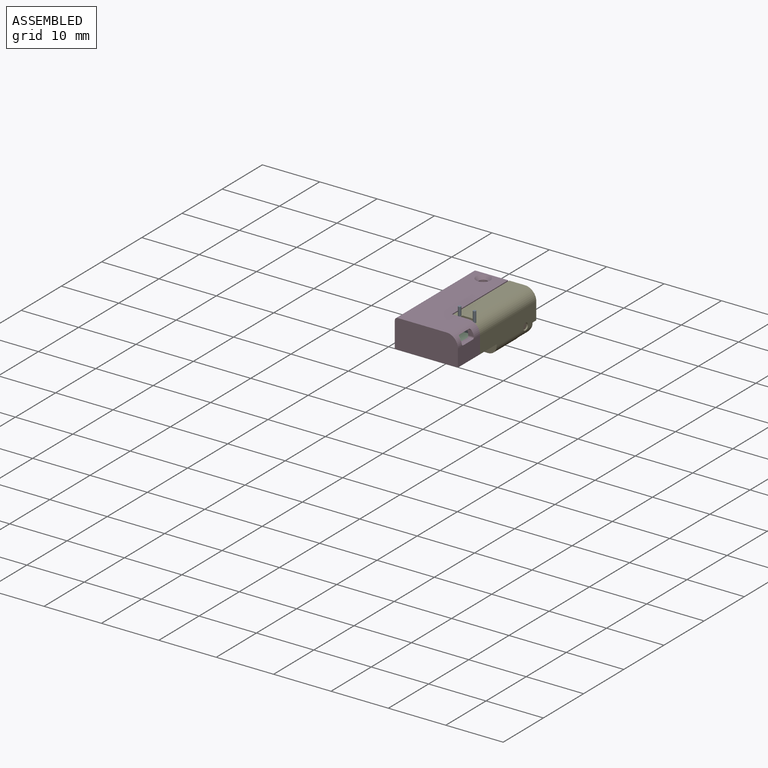
[diagram: assembled view]
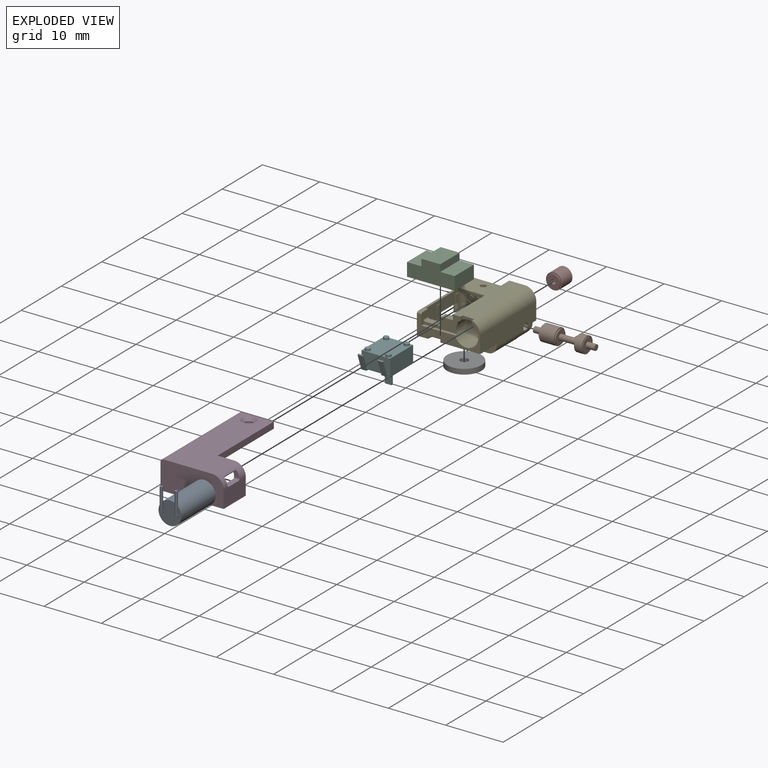
[diagram: exploded view]
GUIDED TOUR — MATED ASSEMBLY (Onshape document 894d8f479f96f955b0e7b1ad, AutoMate assembly 894d8f479f96f955b0e7b1ad_890bfd5f9ae46e16dcd58cb7_c9d778f2d391969207fd51cb_default)

This assembly has 8 components, labeled P0..P7 below (a component is one placed occurrence of a part; the same part can appear more than once), held together by 13 mates. A mate is a constraint between two components; its type names the relative motion it leaves free:
  FASTENED — locks the two components together rigidly (no relative motion),
  PLANAR — leaves sliding in the plane through the listed point (normal = the listed direction) and rotation about that normal free,
  SLIDER — leaves translation along the listed axis free.
Axis/direction vectors are unit vectors and 'through' points are millimeter coordinates, both in the assembly's world frame.

MATES
  1. PLANAR "Planar 3": P4 <-> P5, direction (0.000, -1.000, 0.000) through (3.16, 2.73, 0.66) mm
  2. PLANAR "Planar 6": P1 <-> P4, direction (1.000, 0.000, 0.000) through (9.30, 4.13, -1.98) mm
  3. PLANAR "Planar 2": P5 <-> P4, direction (1.000, 0.000, 0.000) through (5.60, -0.22, 0.09) mm
  4. PLANAR "Planar 13": P5 <-> P6, direction (0.000, 0.000, -1.000) through (3.10, 0.13, -1.51) mm
  5. PLANAR "Planar 1": P4 <-> P5, direction (0.000, 0.000, 1.000) through (2.95, -4.23, -1.28) mm
  6. SLIDER "Slider 1": P4 <-> P1, axis (-1.000, 0.000, 0.000) through (0.00, 4.13, -1.98) mm
  7. PLANAR "Planar 5": P0 <-> P7, direction (0.000, 1.000, 0.000) through (8.60, 2.71, 0.52) mm
  8. PLANAR "Planar 7": P3 <-> P4, direction (0.000, 0.000, -1.000) through (2.90, 1.36, 1.82) mm
  9. PLANAR "Planar 8": P4 <-> P3, direction (0.000, 1.000, 0.000) through (3.15, 6.78, 1.82) mm
  10. PLANAR "Planar 9": P2 <-> P3, direction (0.000, 0.000, -1.000) through (10.00, -9.72, -1.48) mm
  11. FASTENED "Fastened 1": P0 <-> P4, direction (0.000, -1.000, 0.000) through (8.60, 1.78, 0.52) mm
  12. PLANAR "Planar 4": P5 <-> P6, direction (0.000, 0.000, -1.000) through (3.10, 0.13, -1.51) mm
  13. SLIDER "Slider 5": P5 <-> P6, axis (0.000, 0.000, 1.000) through (3.10, 0.13, -1.51) mm

ASSEMBLY ORDER
  1. P4 — the base component [order heuristic]
  2. P5 — core [order heuristic]
  3. P1 — core [order heuristic]
  4. P0 — core [order heuristic]
  5. P7 [order verified]
  6. P2 — core [order heuristic]
  7. P6 — core [order heuristic]
  8. P3 — core [order heuristic]
Order-tag legend:
  [order verified] — this step's position reverses a verified removal order: the component was checked to insert without passing through the ones already placed.
  [order heuristic] — the first 7 components form the assembly's core: parts whose collision-free extraction could not be verified, listed in mate-graph order.

Of the 8 components, 2 carry the full construction recipe — the FeatureScript program that regenerates the part's solid from scratch; the rest are supplied as boundary geometry only.
Each toured component is shown spotlighted twice — in the assembled view, then in the exploded view, where a leader line traces a displaced component back to its assembled socket (saturated green if recipe-attached, orange if geometry-only; every other component desaturated gray) — followed by its recipe or geometry summary and the mates that hold it.
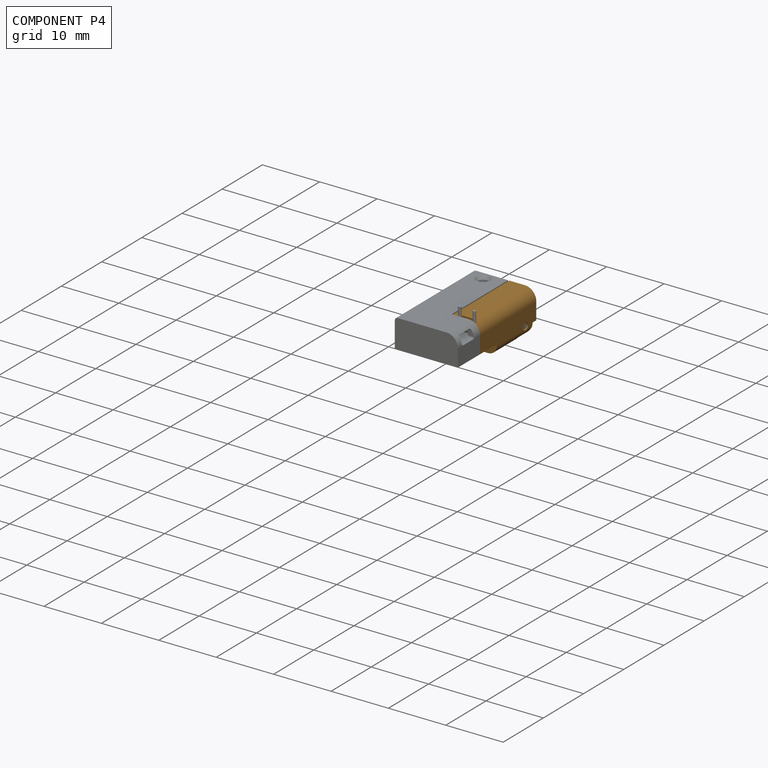
[diagram: component P4 — assembled]
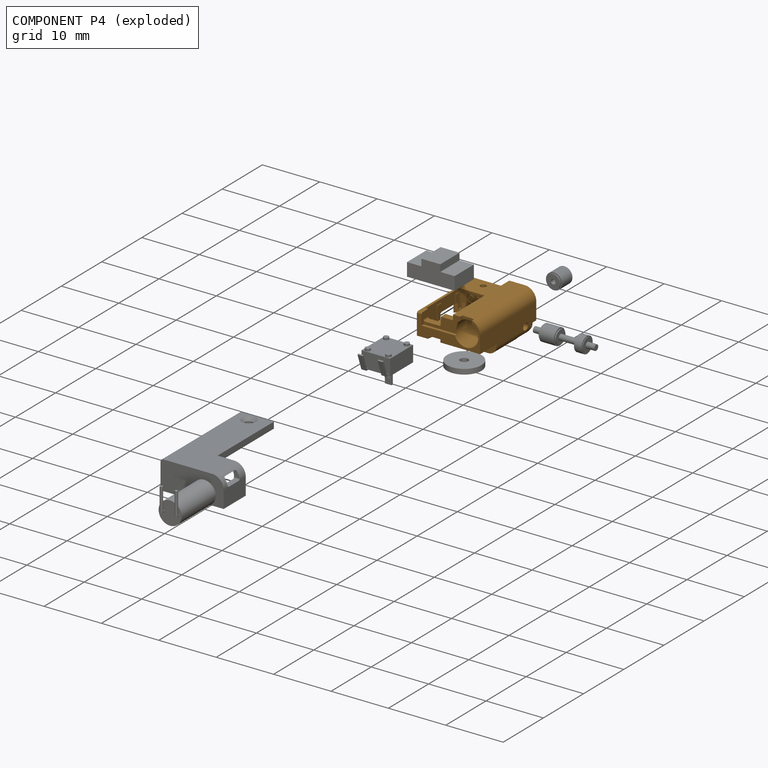
[diagram: component P4 — exploded]
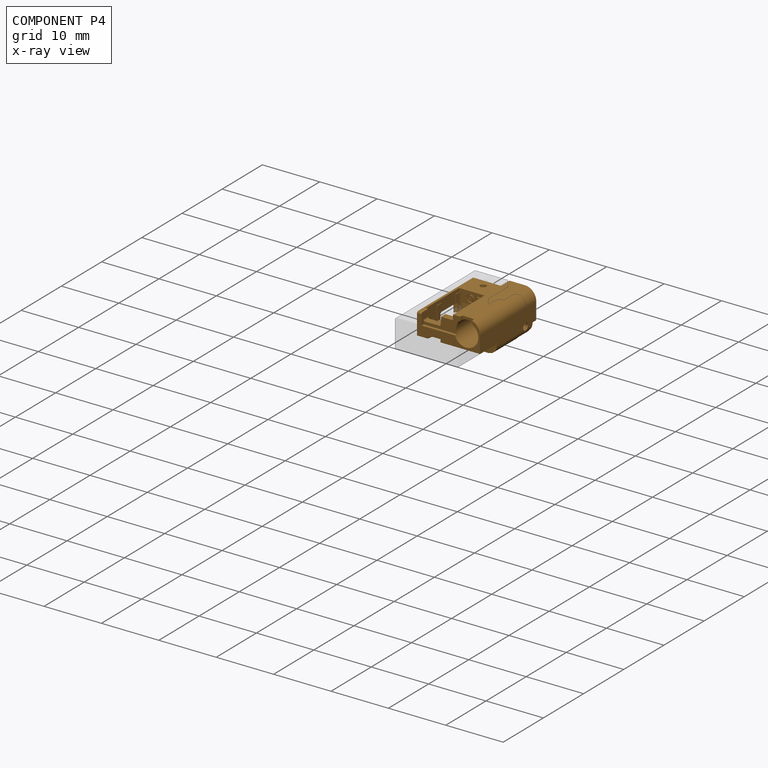
[diagram: component P4 — x-ray view]
COMPONENT P4 — geometry summary (no construction recipe available for this part):
  bounding box: 14.0 x 11.0 x 6.8 mm
  B-rep topology: 1 solid, 144 faces, 836 edges
  volume: 330 mm^3 (31% of its bounding box)
Held by: PLANAR mate "Planar 3" to P5; PLANAR mate "Planar 6" to P1; PLANAR mate "Planar 2" to P5; PLANAR mate "Planar 1" to P5; SLIDER mate "Slider 1" to P1; PLANAR mate "Planar 7" to P3; PLANAR mate "Planar 8" to P3; FASTENED mate "Fastened 1" to P0.
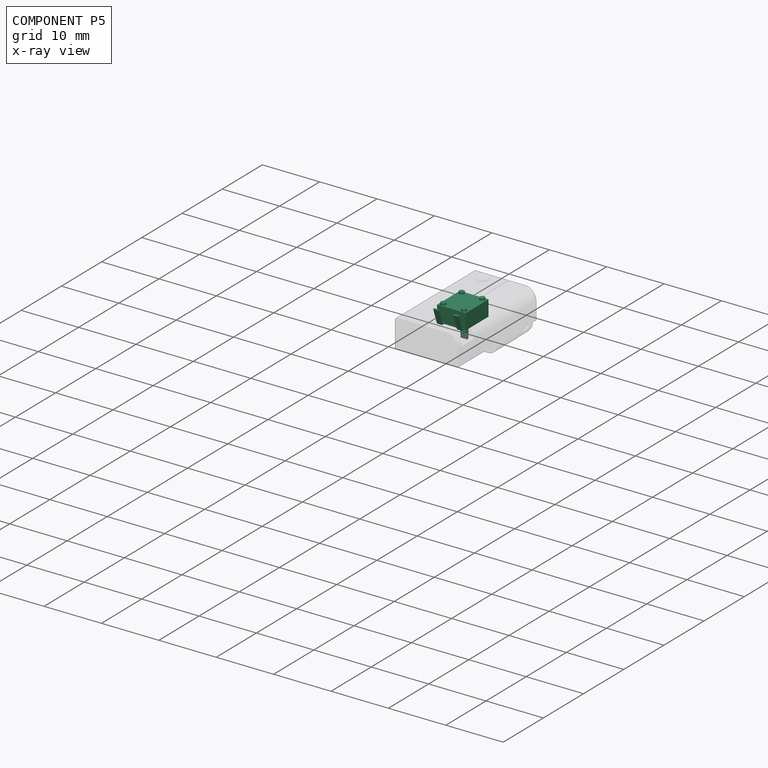
[diagram: component P5 — x-ray view]
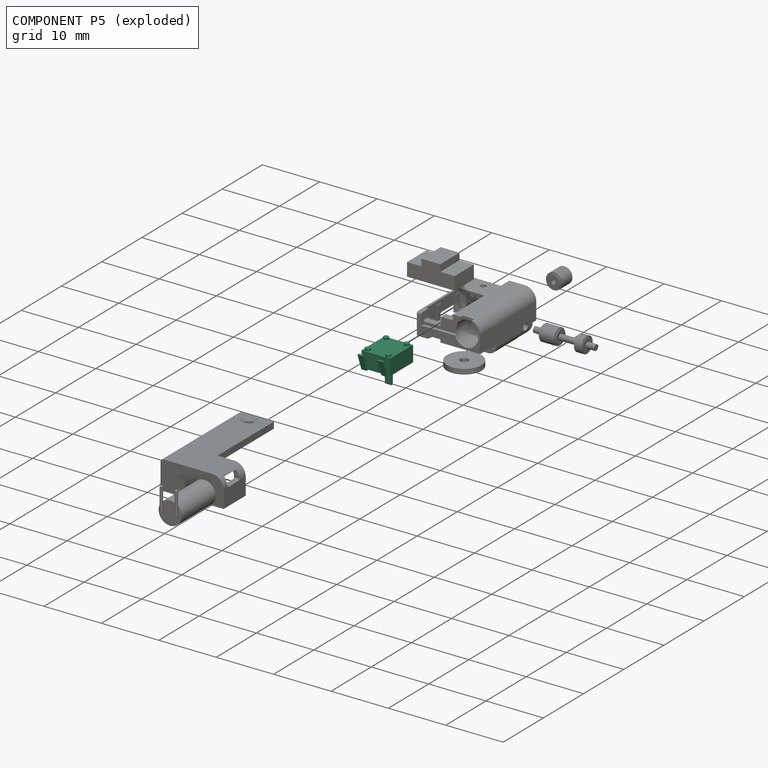
[diagram: component P5 — exploded]
COMPONENT P5 — recipe-attached (CADFS 00302408, mesh-verified: the recipe's output STEP matches this component's geometry to below the mesh-comparison resolution (tessellation chordal tolerance ~0.0161 mm)).
Held by: PLANAR mate "Planar 3" to P4; PLANAR mate "Planar 2" to P4; PLANAR mate "Planar 13" to P6; PLANAR mate "Planar 1" to P4; PLANAR mate "Planar 4" to P6; SLIDER mate "Slider 5" to P6.
Construction recipe (FeatureScript — the CAD program that rebuilds this solid; sketch coordinates are in the units given by the * unit suffixes, e.g. mm):

FeatureScript 1511;
import(path : "onshape/std/geometry.fs", version : "1511.0");
import(path : "onshape/std/common.fs", version : "1511.0");
const mm = millimeter;
const VERTEX = EntityType.VERTEX;
const EDGE = EntityType.EDGE;
const FACE = EntityType.FACE;
const BODY = EntityType.BODY;
function v(x, y){return vector(x, y);}
function OD(order){return orderDisambiguation(order);}
function OSD(set){return originalSetDisambiguation(set);}
function TD(topology){return topologyDisambiguation(topology);}
function TDD(query){return trueDependencyDisambiguation(query);}
function sQuery(a, b, c) {return sketchEntityQuery(a, b, c);}

annotation { "Feature Type Name" : "Feature", "Feature Type Description" : "" }
export const myFeature = defineFeature(function(context is Context, id is Id, definition is map)
    precondition{}
    {
        {
            var Q0;
            Q0=qCreatedBy(makeId("Top.planeOp"),FACE);
            var sketch = newSketch(context, id + "F0", { "sketchPlane" : qUnion([Q0])});
            skLineSegment(sketch, "E0.bottom", {"start": v(-2.5, 2.5) * mm, "end": v(3.2, 2.5) * mm});
            skLineSegment(sketch, "E0.top", {"start": v(-2.5, -2.5) * mm, "end": v(3.2, -2.5) * mm});
            skLineSegment(sketch, "E0.left", {"start": v(-2.5, 2.5) * mm, "end": v(-2.5, -2.5) * mm});
            skLineSegment(sketch, "E0.right", {"start": v(3.2, 2.5) * mm, "end": v(3.2, -2.5) * mm});
            skSolve(sketch);
        }
        {
            var Q0;
            Q0 = qSketchRegion(id + "F0", true);
            extrude(context, id + "F1", {"entities" : qUnion([Q0]), "oppositeDirection" : true, "depth" : 2.75 * mm});
        }
        {
            var Q0;
            Q0=makeQuery(id+"F1.opExtrude","CAP_FACE",FACE,{"disambiguationData":[OSD([sQuery(id+"F0.wireOp",EDGE,"E0.bottom"),sQuery(id+"F0.wireOp",EDGE,"E0.top"),sQuery(id+"F0.wireOp",EDGE,"E0.left"),sQuery(id+"F0.wireOp",EDGE,"E0.right")])],"isStart":true});
            var sketch = newSketch(context, id + "F2", { "sketchPlane" : qUnion([Q0])});
            skCircle(sketch, "E1", {"center": v(0, 0) * mm, "radius": 1.25 * mm});
            skCircle(sketch, "E2", {"center": v(0, 0) * mm, "radius": 0.58 * mm});
            skSolve(sketch);
        }
        {
            var Q0;
            Q0=makeQuery(id+"F2.imprint","IMPRINT",FACE,{"disambiguationData":[TD([[makeQuery(id+"F2.imprint","IMPRINT",EDGE,{"derivedFrom":sQuery(id+"F2.wireOp",EDGE,"E1")}),1.0]])]});
            extrude(context, id + "F3", {"entities" : qUnion([Q0]), "operationType" : NewBodyOperationType.ADD, "depth" : 0.23 * mm});
        }
        {
            var Q0;
            Q0=makeQuery(id+"F3.boolean.opBoolean","SPLIT",FACE,{"disambiguationData":[TD([makeQuery(id+"F3.opExtrude","SWEPT_FACE",FACE,{"disambiguationData":[OSD([sQuery(id+"F2.wireOp",EDGE,"E2")])]})])],"derivedFrom":makeQuery(id+"F1.opExtrude","CAP_FACE",FACE,{"disambiguationData":[OSD([sQuery(id+"F0.wireOp",EDGE,"E0.bottom"),sQuery(id+"F0.wireOp",EDGE,"E0.top"),sQuery(id+"F0.wireOp",EDGE,"E0.left"),sQuery(id+"F0.wireOp",EDGE,"E0.right")])],"isStart":true})});
            extrude(context, id + "F4", {"entities" : qUnion([Q0]), "operationType" : NewBodyOperationType.ADD, "depth" : 3.12 * mm});
        }
        {
            var Q0;
            Q0=makeQuery(id+"F4.opExtrude","CAP_FACE",FACE,{"disambiguationData":[OSD([sQuery(id+"F0.wireOp",EDGE,"E0.bottom"),sQuery(id+"F0.wireOp",EDGE,"E0.top"),sQuery(id+"F0.wireOp",EDGE,"E0.left"),sQuery(id+"F0.wireOp",EDGE,"E0.right")])],"isStart":false});
            var sketch = newSketch(context, id + "F5", { "sketchPlane" : qUnion([Q0])});
            skLineSegment(sketch, "E3", {"start": v(0.11, 0.57) * mm, "end": v(0.12, -0.57) * mm});
            skArc(sketch, "E4", {"start": v(0.11, 0.57) * mm, "mid": v(0.58, 0) * mm, "end": v(0.11, -0.57) * mm});
            skSolve(sketch);
        }
        {
            var Q0;
            Q0 = qSketchRegion(id + "F5", true);
            extrude(context, id + "F6", {"entities" : qUnion([Q0]), "operationType" : NewBodyOperationType.REMOVE, "oppositeDirection" : true, "depth" : 1.1 * mm});
        }
        {
            var Q0;
            Q0=makeQuery(id+"F1.opExtrude","CAP_FACE",FACE,{"disambiguationData":[OSD([sQuery(id+"F0.wireOp",EDGE,"E0.bottom"),sQuery(id+"F0.wireOp",EDGE,"E0.top"),sQuery(id+"F0.wireOp",EDGE,"E0.left"),sQuery(id+"F0.wireOp",EDGE,"E0.right")])],"isStart":false});
            var sketch = newSketch(context, id + "F7", { "sketchPlane" : qUnion([Q0])});
            skCircle(sketch, "E5", {"center": v(2.63, 1.8) * mm, "radius": 0.45 * mm});
            skCircle(sketch, "E6", {"center": v(-1.94, 1.8) * mm, "radius": 0.45 * mm});
            skCircle(sketch, "E7", {"center": v(-1.94, -1.8) * mm, "radius": 0.45 * mm});
            skCircle(sketch, "E8", {"center": v(2.63, -1.8) * mm, "radius": 0.45 * mm});
            skLineSegment(sketch, "E9.bottom", {"start": v(-1.94, -1.8) * mm, "end": v(2.63, -1.8) * mm, "construction": true});
            skLineSegment(sketch, "E9.top", {"start": v(-1.94, 1.8) * mm, "end": v(2.63, 1.8) * mm, "construction": true});
            skLineSegment(sketch, "E9.left", {"start": v(-1.94, -1.8) * mm, "end": v(-1.94, 1.8) * mm, "construction": true});
            skLineSegment(sketch, "E9.right", {"start": v(2.64, -1.8) * mm, "end": v(2.63, 1.8) * mm, "construction": true});
            skPoint(sketch, "E10", {"position": v(-2.5, 0) * mm});
            skPoint(sketch, "E11", {"position": v(0.35, -2.5) * mm});
            skPoint(sketch, "E12", {"position": v(-1.94, 0) * mm});
            skPoint(sketch, "E13", {"position": v(0.35, -1.8) * mm});
            skLineSegment(sketch, "E14", {"start": v(-2.5, 0) * mm, "end": v(-1.94, 0) * mm, "construction": true});
            skLineSegment(sketch, "E15", {"start": v(0.35, -2.5) * mm, "end": v(0.35, -1.8) * mm, "construction": true});
            skSolve(sketch);
        }
        {
            var Q0;
            Q0 = qSketchRegion(id + "F7", true);
            extrude(context, id + "F8", {"entities" : qUnion([Q0]), "operationType" : NewBodyOperationType.ADD, "depth" : 0.37 * mm});
        }
        {
            var Q0;
            Q0=qCreatedBy(makeId("Front.planeOp"),FACE);
            var sketch = newSketch(context, id + "F9", { "sketchPlane" : qUnion([Q0])});
            skLineSegment(sketch, "E16", {"start": v(3.2, 0) * mm, "end": v(3.66, 0) * mm});
            skLineSegment(sketch, "E17", {"start": v(3.66, 0) * mm, "end": v(4.62, -2.66) * mm});
            skLineSegment(sketch, "E18", {"start": v(4.62, -2.66) * mm, "end": v(4.38, -2.75) * mm});
            skLineSegment(sketch, "E19", {"start": v(3.2, -0.25) * mm, "end": v(3.48, -0.25) * mm});
            skLineSegment(sketch, "E20", {"start": v(3.48, -0.25) * mm, "end": v(4.38, -2.75) * mm});
            skLineSegment(sketch, "E21", {"start": v(3.2, 0) * mm, "end": v(3.2, -0.25) * mm});
            skSolve(sketch);
        }
        {
            var Q0;
            Q0 = qSketchRegion(id + "F9", true);
            extrude(context, id + "F10", {"entities" : qUnion([Q0]), "operationType" : NewBodyOperationType.ADD, "depth" : 2.2 * mm, "hasSecondDirection" : true, "secondDirectionOppositeDirection" : true, "secondDirectionDepth" : 2.2 * mm});
        }
        {
            var Q0;
            Q0=qCreatedBy(makeId("Front.planeOp"),FACE);
            var sketch = newSketch(context, id + "F11", { "sketchPlane" : qUnion([Q0])});
            skLineSegment(sketch, "E22.bottom", {"start": v(3.2, 0) * mm, "end": v(4.62, 0) * mm});
            skLineSegment(sketch, "E22.top", {"start": v(3.2, -2.75) * mm, "end": v(4.62, -2.75) * mm});
            skLineSegment(sketch, "E22.left", {"start": v(3.2, 0) * mm, "end": v(3.2, -2.75) * mm});
            skLineSegment(sketch, "E22.right", {"start": v(4.62, 0) * mm, "end": v(4.62, -2.75) * mm});
            skSolve(sketch);
        }
        {
            var Q0;
            Q0 = qSketchRegion(id + "F11", true);
            extrude(context, id + "F12", {"entities" : qUnion([Q0]), "operationType" : NewBodyOperationType.REMOVE, "oppositeDirection" : true, "depth" : 1.3 * mm, "hasSecondDirection" : true, "secondDirectionOppositeDirection" : false, "secondDirectionDepth" : 1.3 * mm});
        }
    });
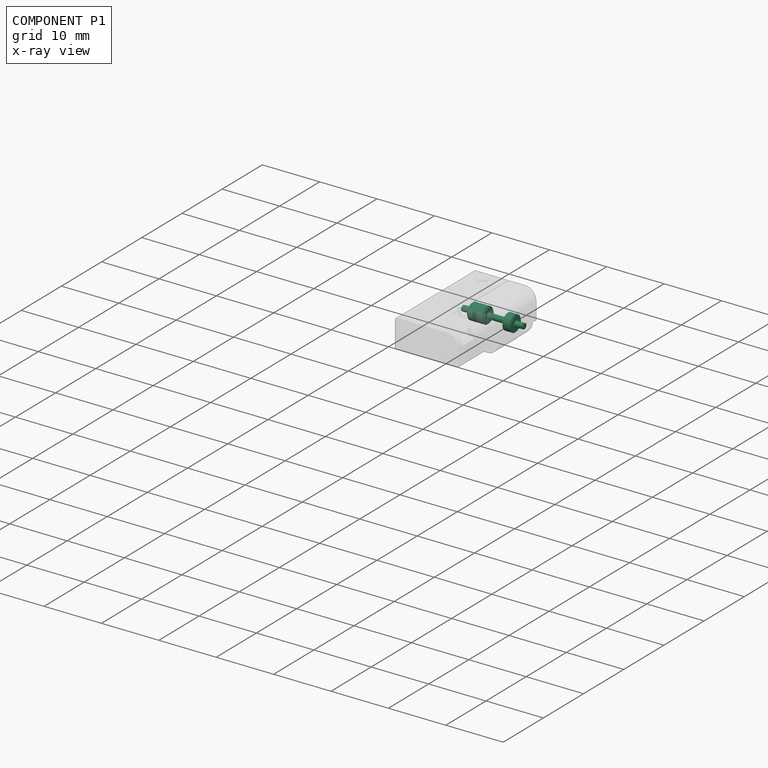
[diagram: component P1 — x-ray view]
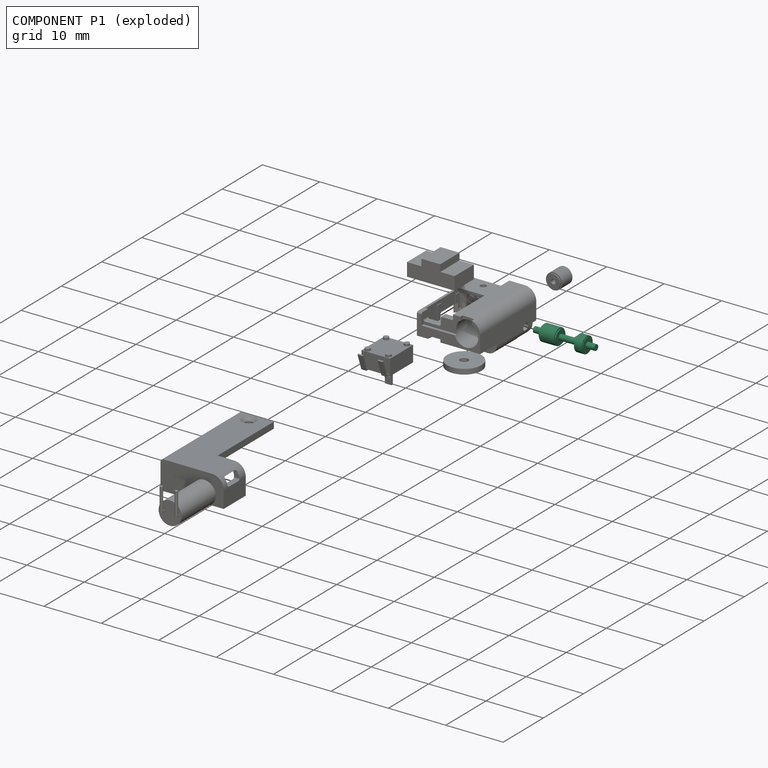
[diagram: component P1 — exploded]
COMPONENT P1 — recipe-attached (CADFS 00316017, mesh-verified: the recipe's output STEP matches this component's geometry to below the mesh-comparison resolution (tessellation chordal tolerance ~0.0171 mm)).
Held by: PLANAR mate "Planar 6" to P4; SLIDER mate "Slider 1" to P4.
Construction recipe (FeatureScript — the CAD program that rebuilds this solid; sketch coordinates are in the units given by the * unit suffixes, e.g. mm):

FeatureScript 1511;
import(path : "onshape/std/geometry.fs", version : "1511.0");
import(path : "onshape/std/common.fs", version : "1511.0");
const mm = millimeter;
const VERTEX = EntityType.VERTEX;
const EDGE = EntityType.EDGE;
const FACE = EntityType.FACE;
const BODY = EntityType.BODY;
function v(x, y){return vector(x, y);}
function OD(order){return orderDisambiguation(order);}
function OSD(set){return originalSetDisambiguation(set);}
function TD(topology){return topologyDisambiguation(topology);}
function TDD(query){return trueDependencyDisambiguation(query);}
function sQuery(a, b, c) {return sketchEntityQuery(a, b, c);}

annotation { "Feature Type Name" : "Feature", "Feature Type Description" : "" }
export const myFeature = defineFeature(function(context is Context, id is Id, definition is map)
    precondition{}
    {
        {
            var Q0;
            Q0=qCreatedBy(makeId("Right.planeOp"),FACE);
            var sketch = newSketch(context, id + "F0", { "sketchPlane" : qUnion([Q0])});
            skLineSegment(sketch, "E0", {"start": v(-1.5, 0) * mm, "end": v(-1.5, 0.5) * mm});
            skLineSegment(sketch, "E1", {"start": v(-1.5, 0.5) * mm, "end": v(0, 0.5) * mm});
            skLineSegment(sketch, "E2", {"start": v(0, 0.5) * mm, "end": v(0, 1.4) * mm});
            skLineSegment(sketch, "E3", {"start": v(0, 1.4) * mm, "end": v(3, 1.4) * mm});
            skLineSegment(sketch, "E4", {"start": v(3, 1.4) * mm, "end": v(3, 0.5) * mm});
            skLineSegment(sketch, "E5", {"start": v(3, 0.5) * mm, "end": v(6.2, 0.5) * mm});
            skLineSegment(sketch, "E6", {"start": v(6.2, 0.5) * mm, "end": v(6.2, 1.2) * mm});
            skLineSegment(sketch, "E7", {"start": v(6.2, 1.2) * mm, "end": v(7.7, 1.2) * mm});
            skLineSegment(sketch, "E8", {"start": v(7.7, 1.2) * mm, "end": v(7.7, 0.5) * mm});
            skLineSegment(sketch, "E9", {"start": v(7.7, 0.5) * mm, "end": v(9.2, 0.5) * mm});
            skLineSegment(sketch, "E10", {"start": v(9.2, 0.5) * mm, "end": v(9.2, 0) * mm});
            skLineSegment(sketch, "E11", {"start": v(9.2, 0) * mm, "end": v(-1.5, 0) * mm});
            skSolve(sketch);
        }
        {
            var Q0;
            Q0 = qSketchRegion(id + "F0", true);
            var Q1;
            Q1=sQuery(id+"F0.wireOp",EDGE,"E11");
            revolve(context, id + "F1", {"surfaceOperationType" : NewSurfaceOperationType.NEW, "entities" : qUnion([Q0]), "axis" : qUnion([Q1]), "revolveType" : RevolveType.FULL});
        }
        {
            var Q0;
            Q0=qCreatedBy(makeId("Right.planeOp"),FACE);
            var sketch = newSketch(context, id + "F2", { "sketchPlane" : qUnion([Q0])});
            skLineSegment(sketch, "E12.0", {"start": v(3, 1.4) * mm, "end": v(3, -1.4) * mm});
            skLineSegment(sketch, "E13", {"start": v(0, 1.4) * mm, "end": v(3, 1.4) * mm});
            skLineSegment(sketch, "E14.0", {"start": v(0, 1.4) * mm, "end": v(0, -1.4) * mm});
            skLineSegment(sketch, "E15.bottom", {"start": v(0, 1.4) * mm, "end": v(0.2, 1.4) * mm});
            skLineSegment(sketch, "E15.top", {"start": v(0, 1.2) * mm, "end": v(0.2, 1.2) * mm});
            skLineSegment(sketch, "E15.left", {"start": v(0, 1.4) * mm, "end": v(0, 1.2) * mm});
            skLineSegment(sketch, "E15.right", {"start": v(0.2, 1.4) * mm, "end": v(0.2, 1.2) * mm});
            skLineSegment(sketch, "E16.bottom", {"start": v(3, 1.4) * mm, "end": v(2.8, 1.4) * mm});
            skLineSegment(sketch, "E16.top", {"start": v(3, 1.2) * mm, "end": v(2.8, 1.2) * mm});
            skLineSegment(sketch, "E16.left", {"start": v(3, 1.4) * mm, "end": v(3, 1.2) * mm});
            skLineSegment(sketch, "E16.right", {"start": v(2.8, 1.4) * mm, "end": v(2.8, 1.2) * mm});
            skLineSegment(sketch, "E17", {"start": v(0, 0) * mm, "end": v(3, 0) * mm, "construction": true});
            skSolve(sketch);
        }
        {
            var Q0;
            Q0 = qSketchRegion(id + "F2", true);
            var Q1;
            Q1=sQuery(id+"F2.wireOp",EDGE,"E17");
            revolve(context, id + "F3", {"operationType" : NewBodyOperationType.REMOVE, "surfaceOperationType" : NewSurfaceOperationType.NEW, "entities" : qUnion([Q0]), "axis" : qUnion([Q1]), "revolveType" : RevolveType.FULL, "oppositeDirection" : true});
        }
        {
            var Q0;
            Q0=qCreatedBy(makeId("Right.planeOp"),FACE);
            var sketch = newSketch(context, id + "F4", { "sketchPlane" : qUnion([Q0])});
            skLineSegment(sketch, "E18", {"start": v(6.7, 1.2) * mm, "end": v(7.7, 1.2) * mm});
            skLineSegment(sketch, "E19.0", {"start": v(6.2, 1.2) * mm, "end": v(6.2, -1.2) * mm});
            skLineSegment(sketch, "E20.0", {"start": v(7.7, 1.2) * mm, "end": v(7.7, -1.2) * mm});
            skLineSegment(sketch, "E21.bottom", {"start": v(6.3, 1.2) * mm, "end": v(7.6, 1.2) * mm});
            skLineSegment(sketch, "E21.top", {"start": v(6.3, 1.4) * mm, "end": v(7.6, 1.4) * mm});
            skLineSegment(sketch, "E21.left", {"start": v(6.3, 1.2) * mm, "end": v(6.3, 1.4) * mm});
            skLineSegment(sketch, "E21.right", {"start": v(7.6, 1.2) * mm, "end": v(7.6, 1.4) * mm});
            skLineSegment(sketch, "E22", {"start": v(6.2, 0) * mm, "end": v(7.7, 0) * mm, "construction": true});
            skSolve(sketch);
        }
        {
            var Q0;
            Q0 = qSketchRegion(id + "F4", true);
            var Q1;
            Q1=sQuery(id+"F4.wireOp",EDGE,"E22");
            revolve(context, id + "F5", {"operationType" : NewBodyOperationType.ADD, "surfaceOperationType" : NewSurfaceOperationType.NEW, "entities" : qUnion([Q0]), "axis" : qUnion([Q1]), "revolveType" : RevolveType.FULL});
        }
    });
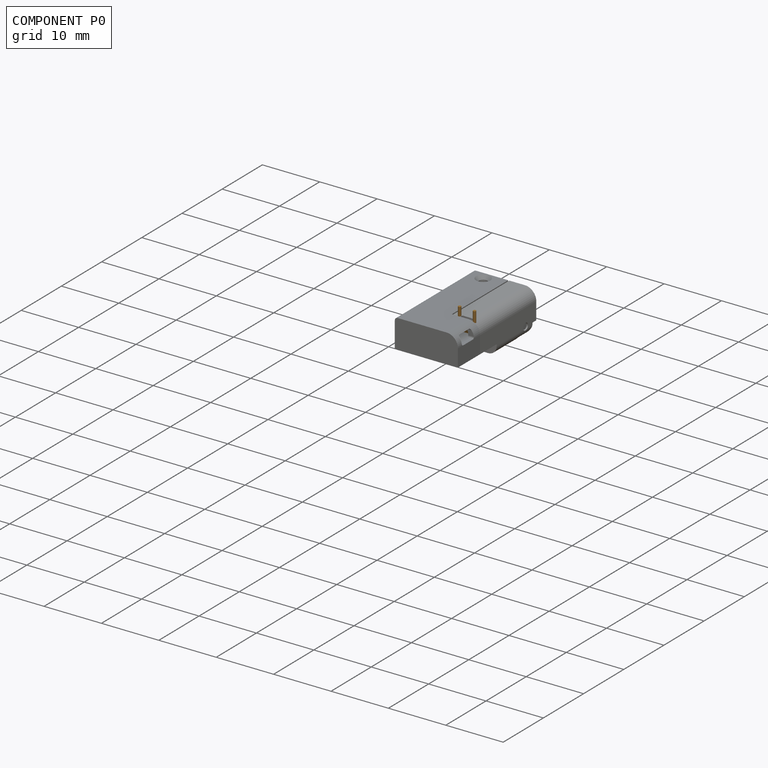
[diagram: component P0 — assembled]
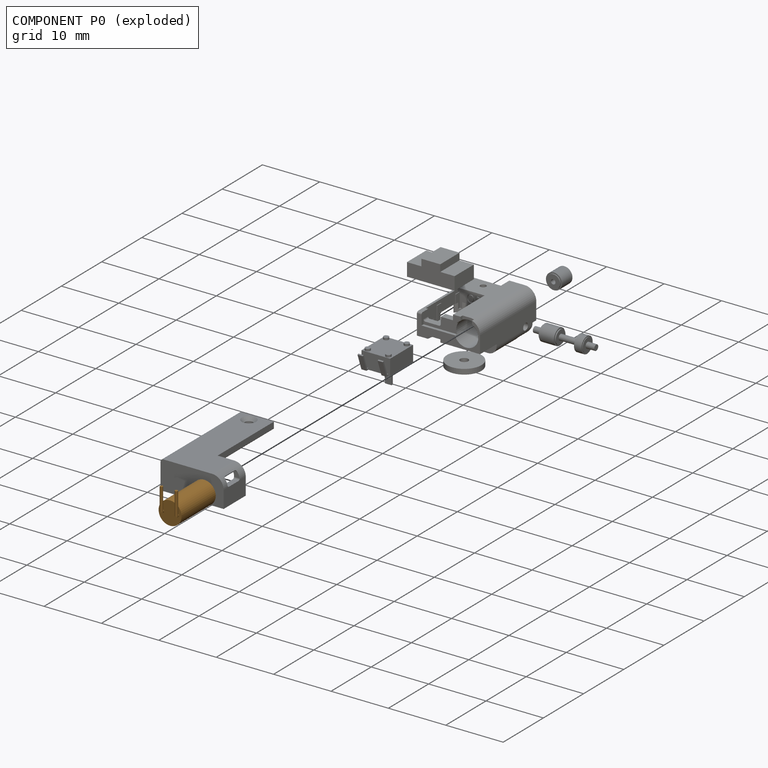
[diagram: component P0 — exploded]
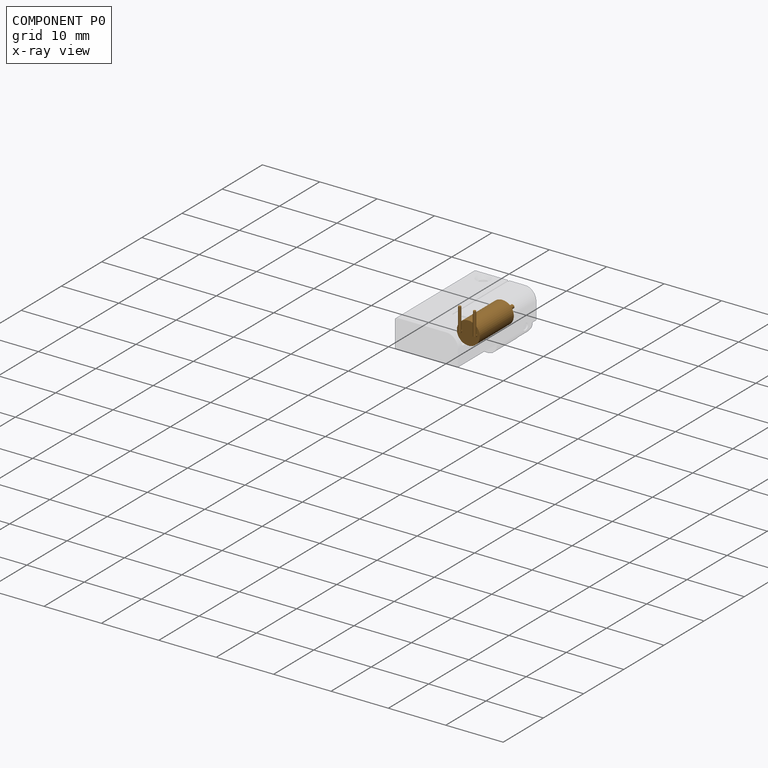
[diagram: component P0 — x-ray view]
COMPONENT P0 — geometry summary (no construction recipe available for this part):
  bounding box: 11.6 x 6.0 x 4.0 mm
  B-rep topology: 1 solid, 17 faces, 52 edges
  volume: 113 mm^3 (41% of its bounding box)
  symmetry: mirror-symmetric across its x mid-plane
Held by: PLANAR mate "Planar 5" to P7; FASTENED mate "Fastened 1" to P4.
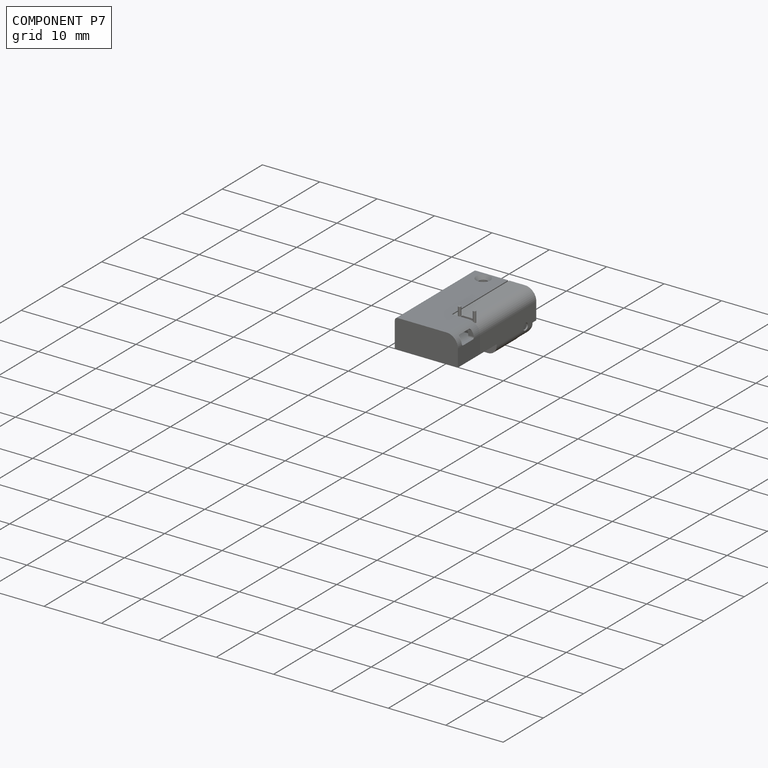
[diagram: component P7 — assembled]
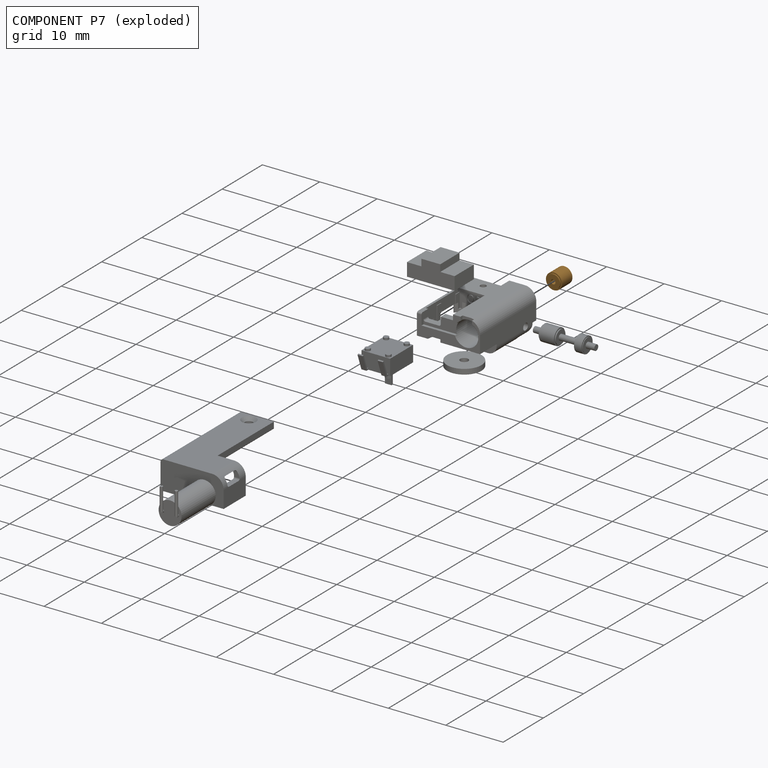
[diagram: component P7 — exploded]
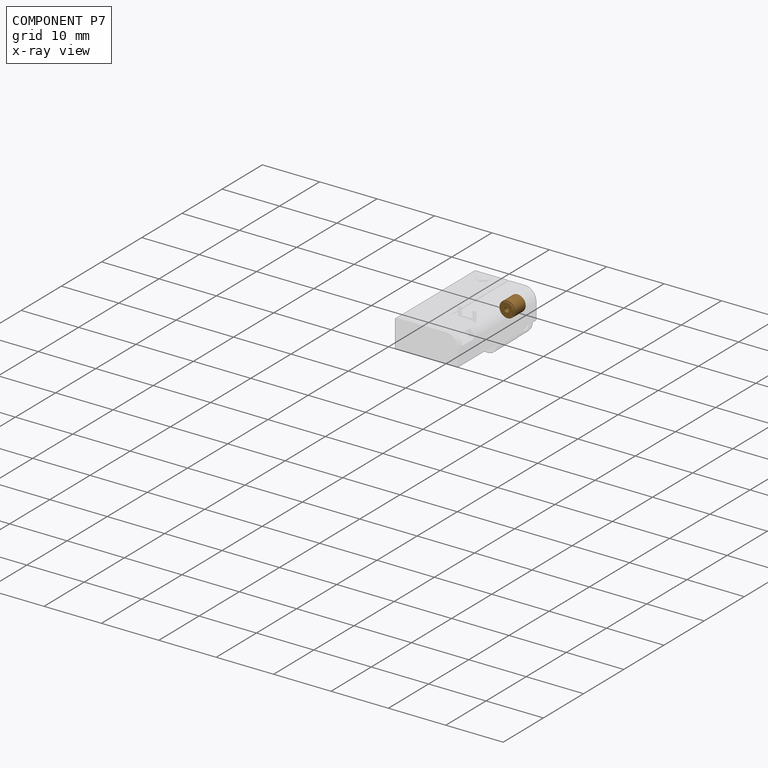
[diagram: component P7 — x-ray view]
COMPONENT P7 — geometry summary (no construction recipe available for this part):
  bounding box: 3.0 x 2.8 x 2.8 mm
  B-rep topology: 1 solid, 8 faces, 24 edges
  volume: 16 mm^3 (69% of its bounding box)
  symmetry: 2-fold rotationally symmetric about the x axis; revolution-symmetric about the y axis through its bounding-box center; 2-fold rotationally symmetric about the z axis; mirror-symmetric across its x mid-plane, y mid-plane, z mid-plane
Held by: PLANAR mate "Planar 5" to P0.
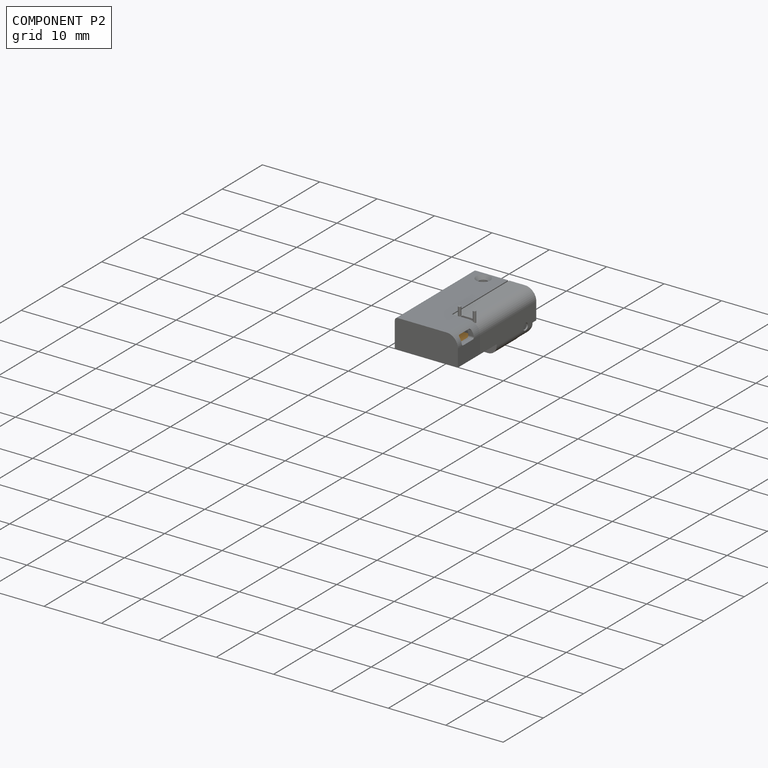
[diagram: component P2 — assembled]
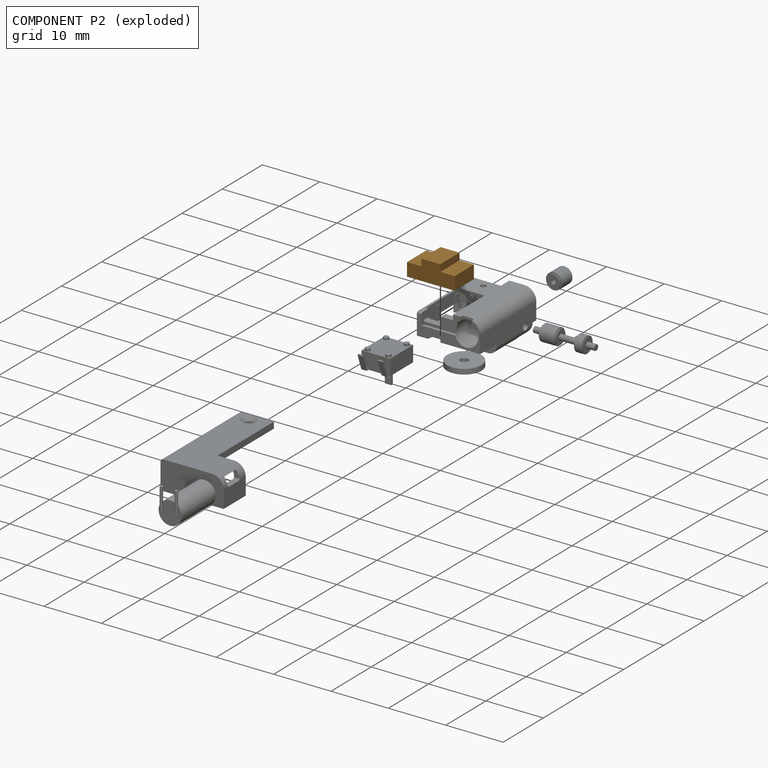
[diagram: component P2 — exploded]
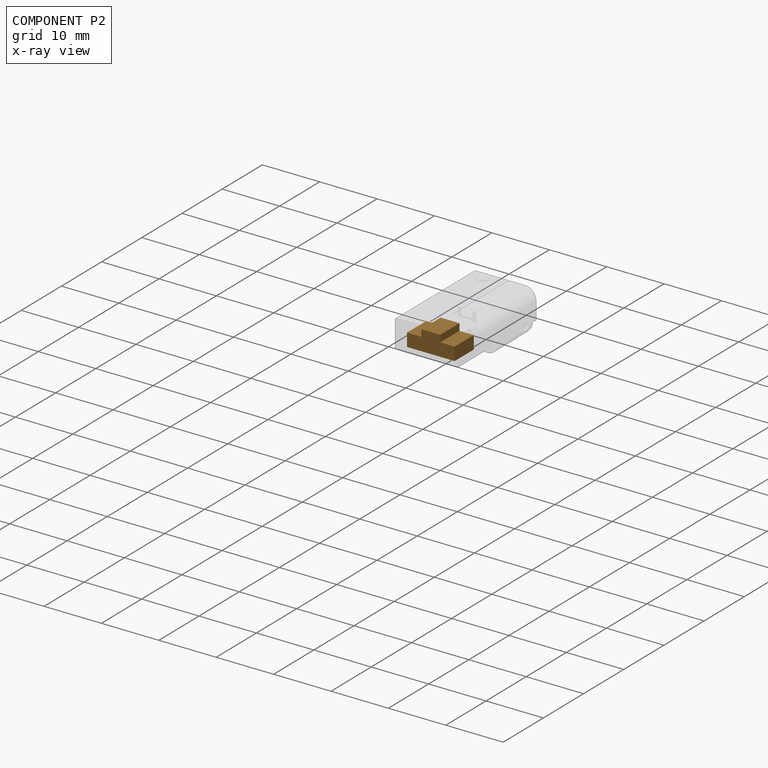
[diagram: component P2 — x-ray view]
COMPONENT P2 — geometry summary (no construction recipe available for this part):
  bounding box: 8.3 x 4.8 x 3.5 mm
  B-rep topology: 1 solid, 10 faces, 48 edges
  volume: 111 mm^3 (79% of its bounding box)
  symmetry: 2-fold rotationally symmetric about the z axis; mirror-symmetric across its x mid-plane, y mid-plane
Held by: PLANAR mate "Planar 9" to P3.
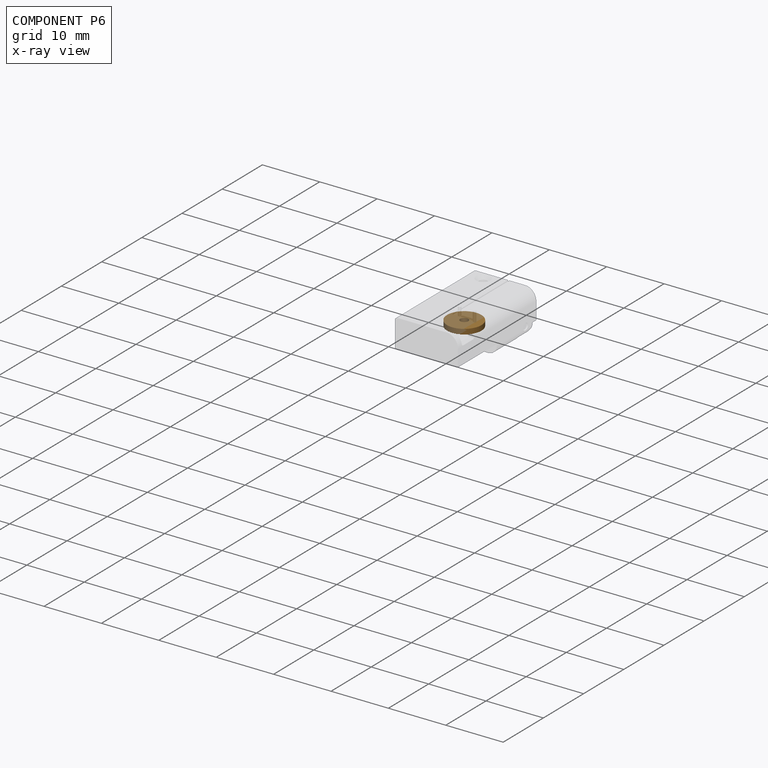
[diagram: component P6 — x-ray view]
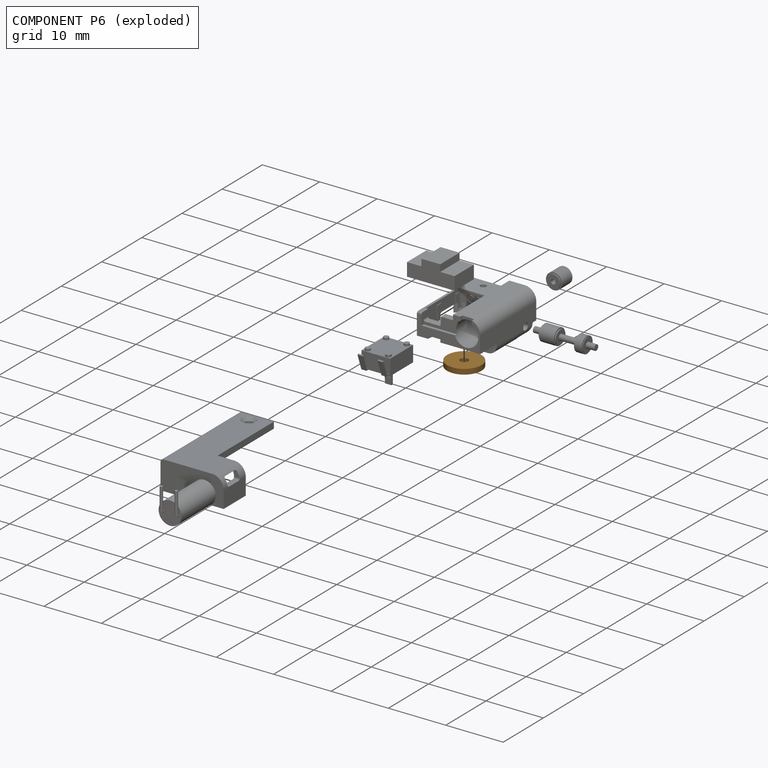
[diagram: component P6 — exploded]
COMPONENT P6 — geometry summary (no construction recipe available for this part):
  bounding box: 6.0 x 6.0 x 1.0 mm
  B-rep topology: 1 solid, 6 faces, 18 edges
  volume: 26 mm^3 (73% of its bounding box)
  symmetry: revolution-symmetric about the z axis through its bounding-box center; mirror-symmetric across its x mid-plane, y mid-plane
Held by: PLANAR mate "Planar 13" to P5; PLANAR mate "Planar 4" to P5; SLIDER mate "Slider 5" to P5.
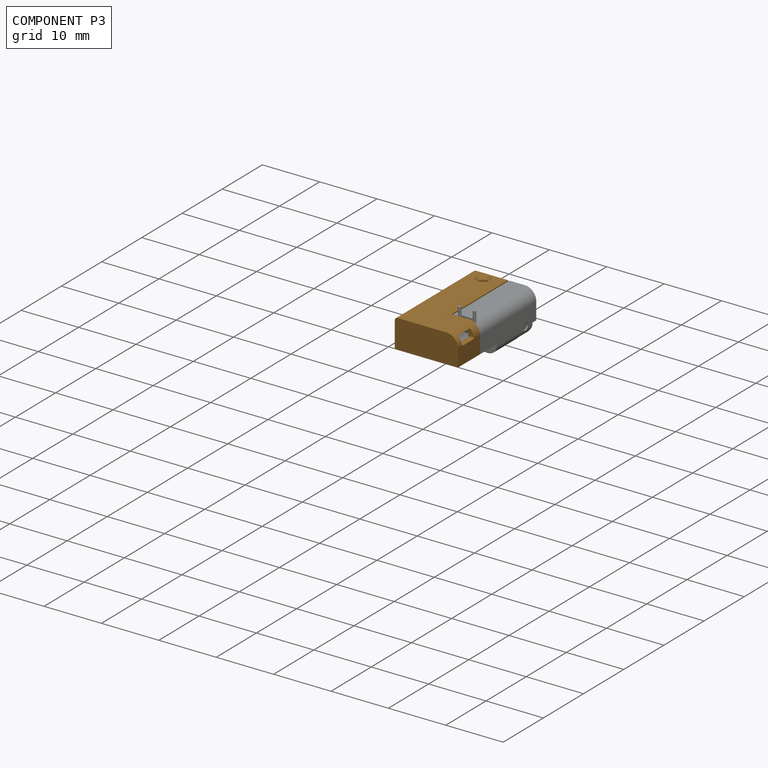
[diagram: component P3 — assembled]
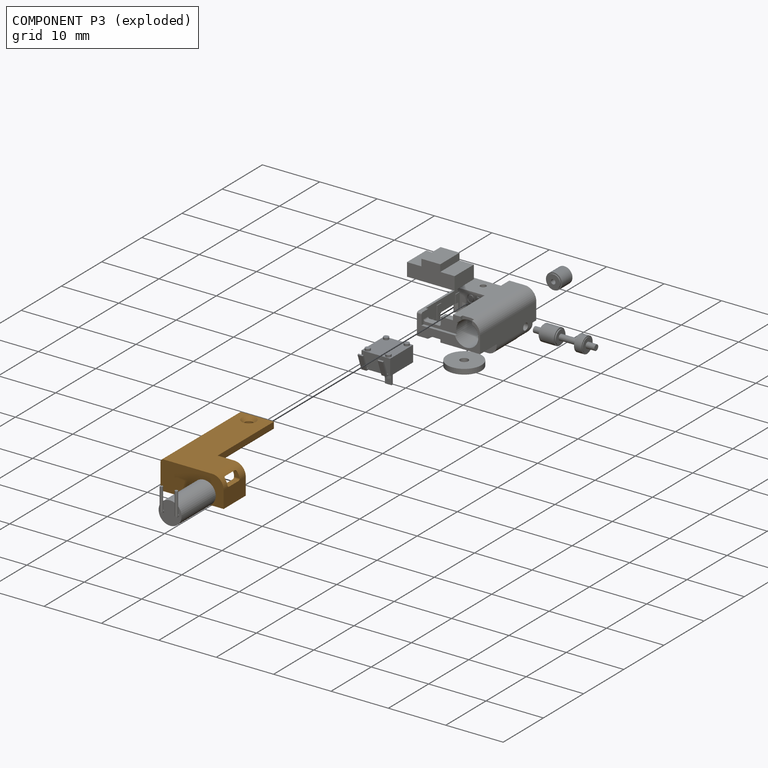
[diagram: component P3 — exploded]
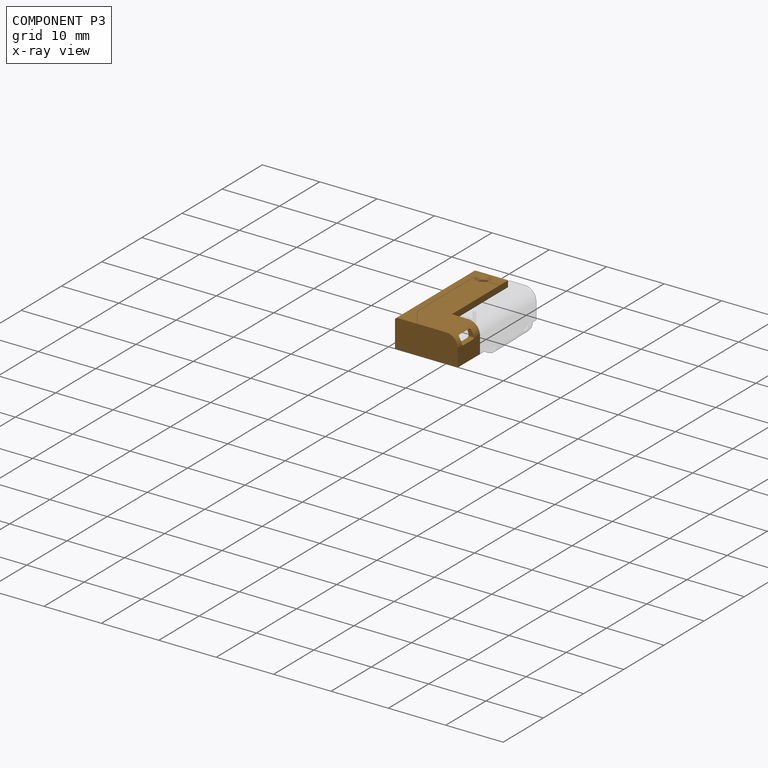
[diagram: component P3 — x-ray view]
COMPONENT P3 — geometry summary (no construction recipe available for this part):
  bounding box: 19.5 x 11.0 x 5.0 mm
  B-rep topology: 1 solid, 72 faces, 400 edges
  volume: 188 mm^3 (18% of its bounding box)
Held by: PLANAR mate "Planar 7" to P4; PLANAR mate "Planar 8" to P4; PLANAR mate "Planar 9" to P2.
PROVENANCE & LICENSES
Assembly (occurrences, transforms, mates, per-part STEP geometry): AutoMate dataset, Zenodo record 7776208, CC0.
Construction recipes: CADFS (HuggingFace VladPyatov/CADFS, CC-BY-4.0, layered over the ABC dataset), FeatureScript reconstruction programs keyed by ABC model id.
Join: ABC meta listings map ABC model id -> Onshape documentId; within a shared document, parts are matched by geometric signature (bounding-box dims + volume at 0.1% relative tolerance, exact B-rep face/solid counts).
Verification: 2 of this assembly's 8 components carry a recipe attachment, and every attachment is mesh-verified: the CADFS STEP and the AutoMate member STEP were compared as meshes in their shared local frame (symmetric sampled-point-to-mesh distance); worst across the 2 attachments: below the mesh-comparison resolution (tessellation chordal tolerance ~0.0171 mm) on a 11 mm part.
Renders: orthographic iso camera (az 35 / el 25); the floor grid conveys scale (grid pitch printed in each image; no ruler). In the exploded view each component is displaced by its stored offset vector: the offsets alone carry the explosion direction (mate normal/axis signs are not orientation cues and do not encode it), and separation distances are assigned per mate-chain, not proportionally to assembly-order depth.
